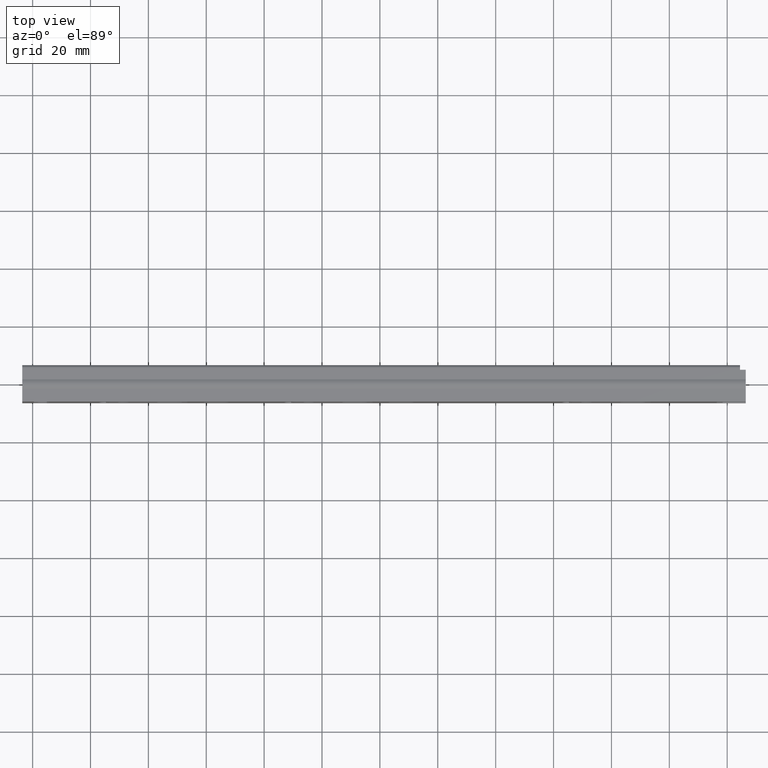
[diagram: clean part render]
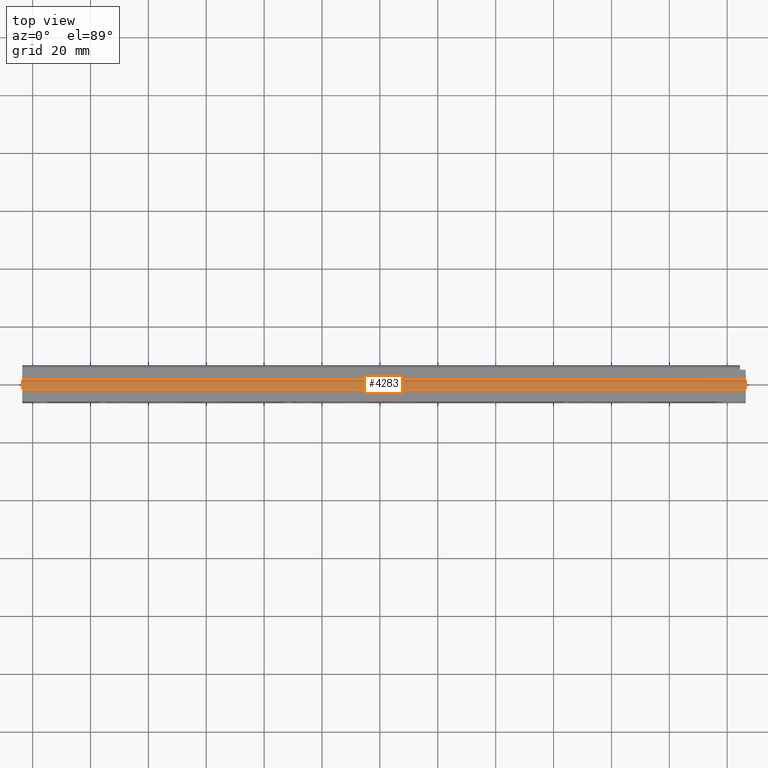
[diagram: same view with one face highlighted and labeled with its STEP entity id]
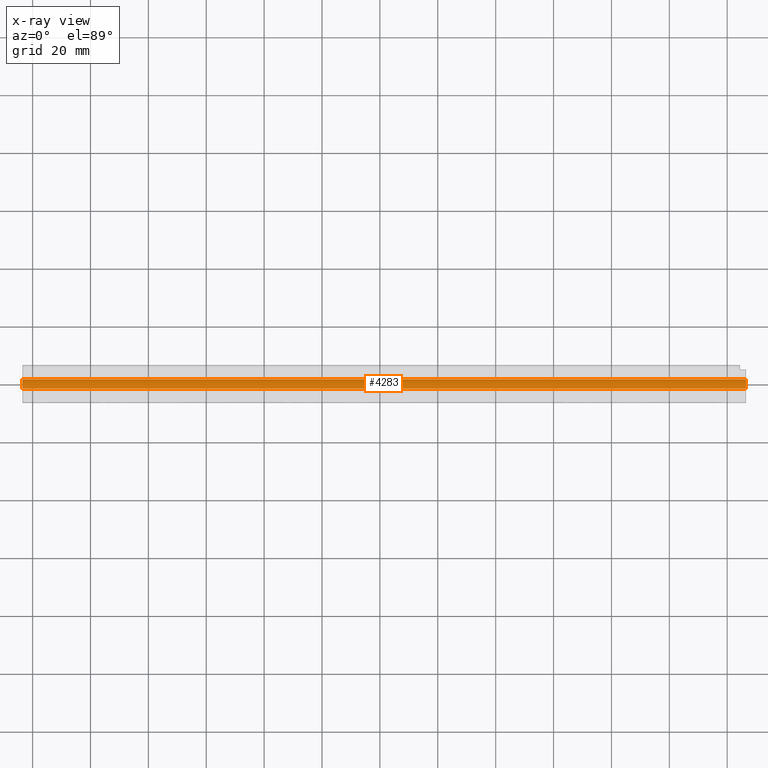
[diagram: x-ray of the same camera — body ghosted, the highlighted face saturated]
A machine part, top view. The second image highlights one B-rep face of the part: STEP entity #4283.
The next image is the same camera in x-ray: the body ghosted, the highlighted face saturated — about 0% of this face is hidden behind the body in this view.
In plain terms, the highlighted cylindrical surface (edge-blend (fillet) strip) has radius 2.9725 mm, axis along (1, 0, 0).
Its self-contained STEP definition (entity closure, byte-faithful):
#91=CYLINDRICAL_SURFACE('',#4591,2.9725);
#277=FACE_OUTER_BOUND('',#519,.T.);
#519=EDGE_LOOP('',(#3257,#3258,#3259,#3260));
#878=LINE('',#6623,#1336);
#880=LINE('',#6629,#1338);
#1336=VECTOR('',#5348,250.);
#1338=VECTOR('',#5354,250.);
#1681=CIRCLE('',#4592,2.9725);
#1682=CIRCLE('',#4593,2.9725);
#1954=VERTEX_POINT('',#6620);
#1955=VERTEX_POINT('',#6622);
#1956=VERTEX_POINT('',#6626);
#1957=VERTEX_POINT('',#6628);
#2456=EDGE_CURVE('',#1955,#1954,#878,.T.);
#2458=EDGE_CURVE('',#1956,#1954,#1681,.T.);
#2459=EDGE_CURVE('',#1957,#1956,#880,.T.);
#2460=EDGE_CURVE('',#1955,#1957,#1682,.T.);
#3257=ORIENTED_EDGE('',*,*,#2456,.T.);
#3258=ORIENTED_EDGE('',*,*,#2458,.F.);
#3259=ORIENTED_EDGE('',*,*,#2459,.F.);
#3260=ORIENTED_EDGE('',*,*,#2460,.F.);
#4283=ADVANCED_FACE('',(#277),#91,.T.);
#4591=AXIS2_PLACEMENT_3D('',#6625,#5350,#5351);
#4592=AXIS2_PLACEMENT_3D('',#6627,#5352,#5353);
#4593=AXIS2_PLACEMENT_3D('',#6630,#5355,#5356);
#5348=DIRECTION('',(1.,0.,0.));
#5350=DIRECTION('center_axis',(1.,0.,0.));
#5351=DIRECTION('ref_axis',(0.,0.555088309503784,0.83179142136249));
#5352=DIRECTION('center_axis',(1.,0.,0.));
#5353=DIRECTION('ref_axis',(0.,0.555088309503784,0.83179142136249));
#5354=DIRECTION('',(1.,0.,0.));
#5355=DIRECTION('center_axis',(-1.,0.,0.));
#5356=DIRECTION('ref_axis',(0.,0.555088309503784,0.83179142136249));
#6620=CARTESIAN_POINT('',(125.,4.35000000000001,17.));
#6622=CARTESIAN_POINT('',(-125.,4.35000000000001,17.));
#6623=CARTESIAN_POINT('',(0.,4.35000000000001,17.));
#6625=CARTESIAN_POINT('Origin',(0.,6.00000000000001,14.5275));
#6626=CARTESIAN_POINT('',(125.,7.65,17.));
#6627=CARTESIAN_POINT('Origin',(125.,6.00000000000001,14.5275));
#6628=CARTESIAN_POINT('',(-125.,7.65,17.));
#6629=CARTESIAN_POINT('',(0.,7.65,17.));
#6630=CARTESIAN_POINT('Origin',(-125.,6.00000000000001,14.5275));